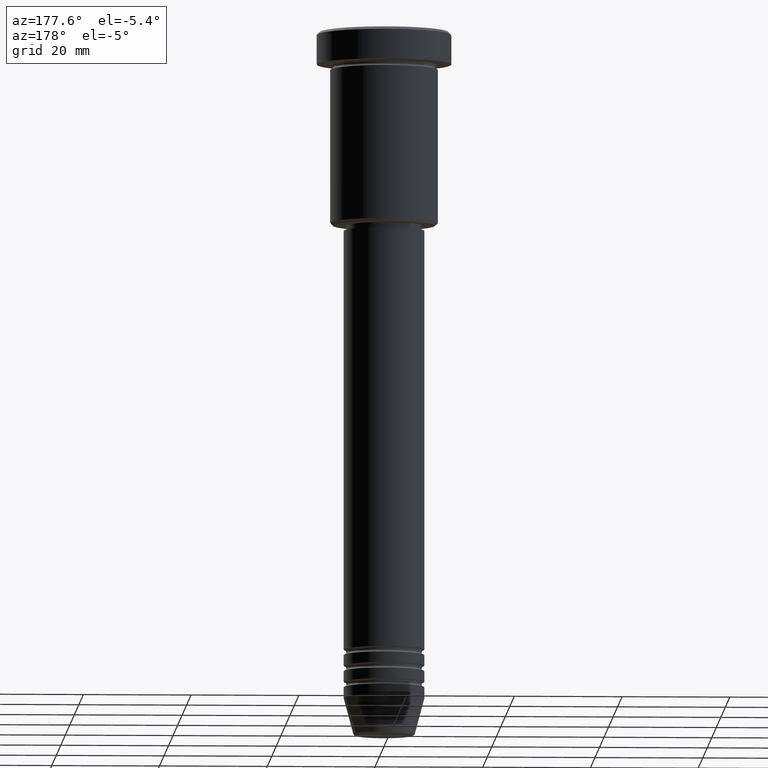
[diagram: clean part render]
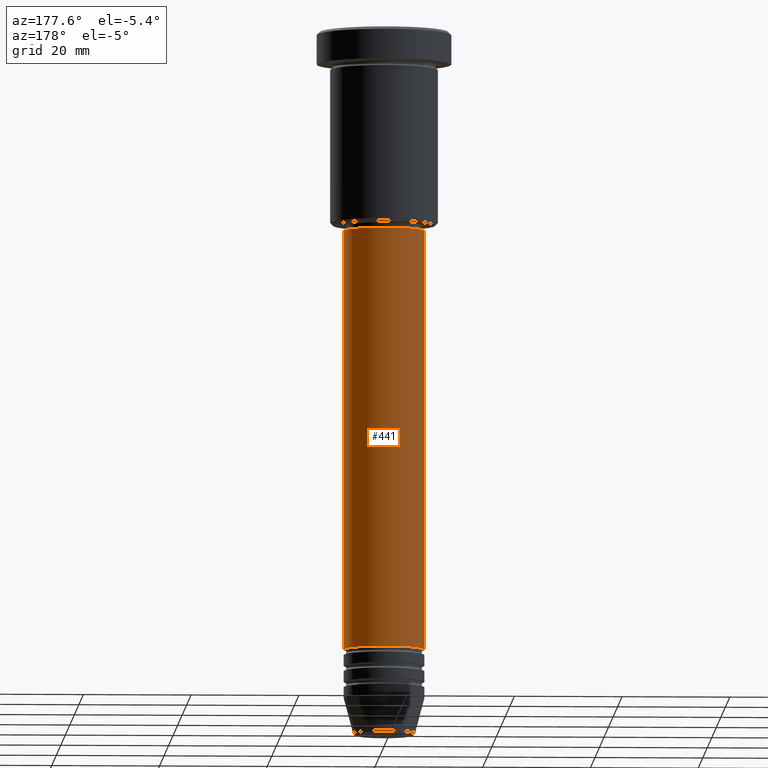
[diagram: same view with one face highlighted and labeled with its STEP entity id]
A machine part, auxiliary view. The second image highlights one B-rep face of the part: STEP entity #441.
In plain terms, the highlighted cylindrical surface (partial cylindrical patch) has radius 7.5 mm, axis along (-0, -0, 1).
Its self-contained STEP definition (entity closure, byte-faithful):
#4 = CARTESIAN_POINT ( 'NONE',  ( 7.500000000000000000, 0.000000000000000000, 0.000000000000000000 ) ) ;
#6 = CARTESIAN_POINT ( 'NONE',  ( -7.500000000000000000, 9.184850993605147944E-16, -114.9999999999999574 ) ) ;
#15 = LINE ( 'NONE', #4, #409 ) ;
#49 = CARTESIAN_POINT ( 'NONE',  ( 0.000000000000000000, 0.000000000000000000, 0.000000000000000000 ) ) ;
#95 = EDGE_CURVE ( 'NONE', #496, #557, #367, .T. ) ;
#152 = VERTEX_POINT ( 'NONE', #1089 ) ;
#199 = ORIENTED_EDGE ( 'NONE', *, *, #95, .T. ) ;
#200 = AXIS2_PLACEMENT_3D ( 'NONE', #49, #770, #215 ) ;
#215 = DIRECTION ( 'NONE',  ( 1.000000000000000000, 0.000000000000000000, 0.000000000000000000 ) ) ;
#224 = CYLINDRICAL_SURFACE ( 'NONE', #200, 7.500000000000000000 ) ;
#257 = EDGE_CURVE ( 'NONE', #496, #152, #15, .T. ) ;
#301 = CIRCLE ( 'NONE', #321, 7.500000000000000000 ) ;
#316 = CARTESIAN_POINT ( 'NONE',  ( 0.000000000000000000, 0.000000000000000000, -37.00000000000000000 ) ) ;
#321 = AXIS2_PLACEMENT_3D ( 'NONE', #316, #877, #772 ) ;
#329 = CARTESIAN_POINT ( 'NONE',  ( 0.000000000000000000, 0.000000000000000000, -114.9999999999999574 ) ) ;
#361 = DIRECTION ( 'NONE',  ( -0.000000000000000000, -0.000000000000000000, 1.000000000000000000 ) ) ;
#367 = CIRCLE ( 'NONE', #1042, 7.500000000000000000 ) ;
#409 = VECTOR ( 'NONE', #361, 1000.000000000000000 ) ;
#422 = CARTESIAN_POINT ( 'NONE',  ( -7.500000000000000000, 9.184850993605147944E-16, -37.00000000000000000 ) ) ;
#441 = ADVANCED_FACE ( 'NONE', ( #784 ), #224, .T. ) ;
#450 = CARTESIAN_POINT ( 'NONE',  ( -7.500000000000000000, 9.184850993605147944E-16, 0.000000000000000000 ) ) ;
#470 = LINE ( 'NONE', #450, #931 ) ;
#478 = VERTEX_POINT ( 'NONE', #422 ) ;
#496 = VERTEX_POINT ( 'NONE', #1083 ) ;
#557 = VERTEX_POINT ( 'NONE', #6 ) ;
#568 = ORIENTED_EDGE ( 'NONE', *, *, #257, .F. ) ;
#598 = ORIENTED_EDGE ( 'NONE', *, *, #922, .T. ) ;
#617 = EDGE_LOOP ( 'NONE', ( #199, #598, #975, #568 ) ) ;
#733 = DIRECTION ( 'NONE',  ( -0.000000000000000000, -0.000000000000000000, 1.000000000000000000 ) ) ;
#770 = DIRECTION ( 'NONE',  ( -0.000000000000000000, -0.000000000000000000, 1.000000000000000000 ) ) ;
#772 = DIRECTION ( 'NONE',  ( 1.000000000000000000, 0.000000000000000000, 0.000000000000000000 ) ) ;
#784 = FACE_OUTER_BOUND ( 'NONE', #617, .T. ) ;
#877 = DIRECTION ( 'NONE',  ( -0.000000000000000000, -0.000000000000000000, 1.000000000000000000 ) ) ;
#922 = EDGE_CURVE ( 'NONE', #557, #478, #470, .T. ) ;
#931 = VECTOR ( 'NONE', #733, 1000.000000000000000 ) ;
#975 = ORIENTED_EDGE ( 'NONE', *, *, #1051, .F. ) ;
#1042 = AXIS2_PLACEMENT_3D ( 'NONE', #329, #1060, #1066 ) ;
#1051 = EDGE_CURVE ( 'NONE', #152, #478, #301, .T. ) ;
#1060 = DIRECTION ( 'NONE',  ( -0.000000000000000000, -0.000000000000000000, 1.000000000000000000 ) ) ;
#1066 = DIRECTION ( 'NONE',  ( 1.000000000000000000, 0.000000000000000000, 0.000000000000000000 ) ) ;
#1083 = CARTESIAN_POINT ( 'NONE',  ( 7.500000000000000000, 0.000000000000000000, -114.9999999999999574 ) ) ;
#1089 = CARTESIAN_POINT ( 'NONE',  ( 7.500000000000000000, 0.000000000000000000, -37.00000000000000000 ) ) ;